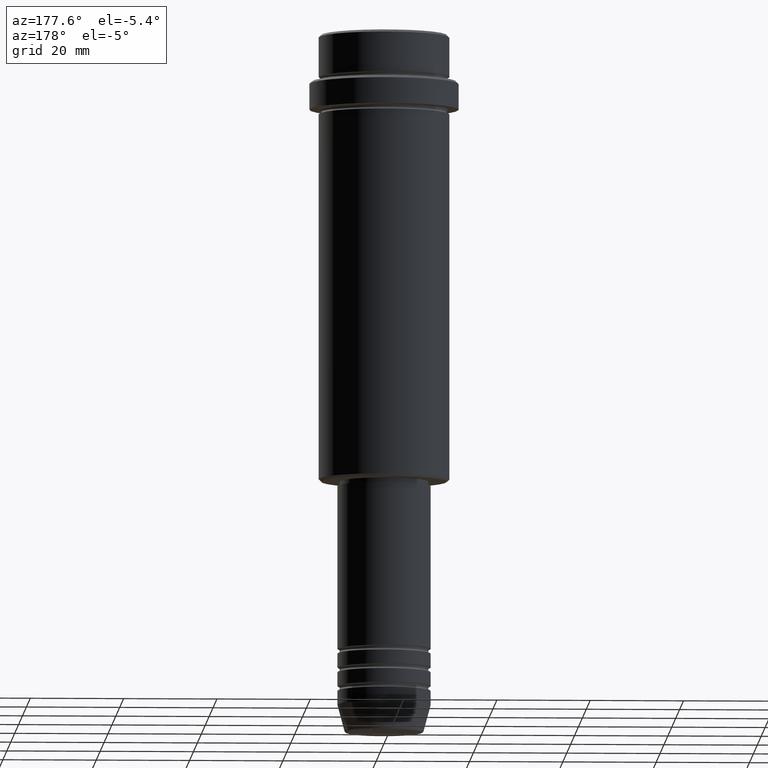
[diagram: clean part render]
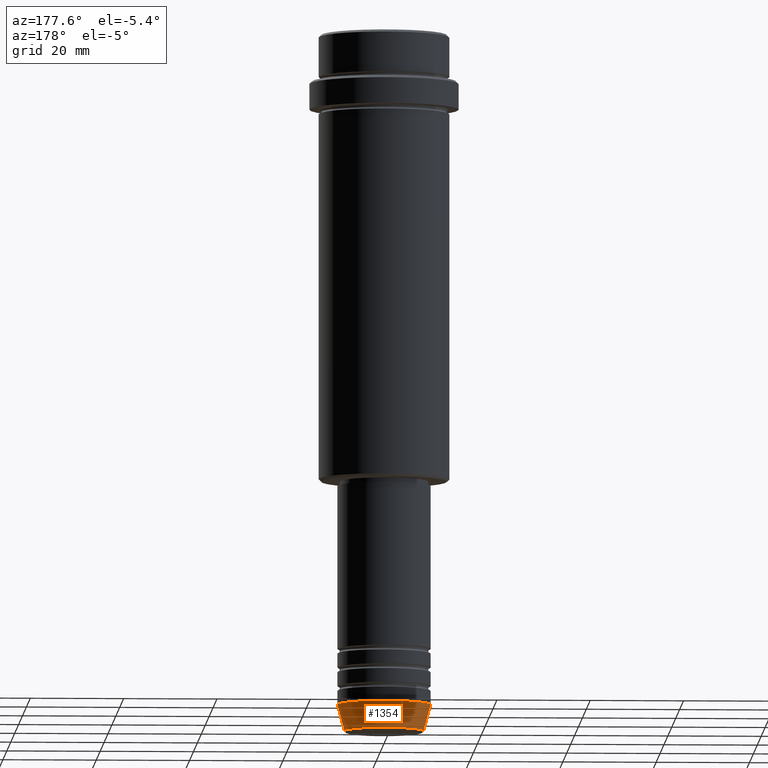
[diagram: same view with one face highlighted and labeled with its STEP entity id]
A machine part, auxiliary view. The second image highlights one B-rep face of the part: STEP entity #1354.
In plain terms, the highlighted conical surface has half-angle 15 deg.
Its self-contained STEP definition (entity closure, byte-faithful):
#48 = DIRECTION ( 'NONE',  ( -0.000000000000000000, -0.000000000000000000, 1.000000000000000000 ) ) ;
#54 = LINE ( 'NONE', #477, #246 ) ;
#84 = EDGE_CURVE ( 'NONE', #1360, #914, #1189, .T. ) ;
#93 = CARTESIAN_POINT ( 'NONE',  ( -10.00000000000000000, 1.224646799147353256E-15, -144.0000000000000284 ) ) ;
#133 = DIRECTION ( 'NONE',  ( -0.000000000000000000, -0.000000000000000000, 1.000000000000000000 ) ) ;
#205 = LINE ( 'NONE', #512, #846 ) ;
#230 = CARTESIAN_POINT ( 'NONE',  ( 8.491604264568309191, 0.000000000000000000, -149.6294095225512990 ) ) ;
#233 = CARTESIAN_POINT ( 'NONE',  ( 0.000000000000000000, 0.000000000000000000, -144.0000000000000284 ) ) ;
#246 = VECTOR ( 'NONE', #598, 1000.000000000000114 ) ;
#247 = AXIS2_PLACEMENT_3D ( 'NONE', #971, #660, #978 ) ;
#322 = VERTEX_POINT ( 'NONE', #1132 ) ;
#477 = CARTESIAN_POINT ( 'NONE',  ( 10.00000000000000000, 0.000000000000000000, -144.0000000000000284 ) ) ;
#482 = EDGE_CURVE ( 'NONE', #914, #632, #205, .T. ) ;
#512 = CARTESIAN_POINT ( 'NONE',  ( -10.00000000000000000, 1.224646799147353256E-15, -144.0000000000000284 ) ) ;
#528 = FACE_OUTER_BOUND ( 'NONE', #998, .T. ) ;
#559 = ORIENTED_EDGE ( 'NONE', *, *, #852, .F. ) ;
#598 = DIRECTION ( 'NONE',  ( 0.2588190451025211281, 0.000000000000000000, 0.9659258262890680902 ) ) ;
#603 = CARTESIAN_POINT ( 'NONE',  ( 0.000000000000000000, 0.000000000000000000, -149.6294095225512990 ) ) ;
#632 = VERTEX_POINT ( 'NONE', #93 ) ;
#660 = DIRECTION ( 'NONE',  ( -0.000000000000000000, -0.000000000000000000, 1.000000000000000000 ) ) ;
#686 = CIRCLE ( 'NONE', #1355, 10.00000000000000000 ) ;
#739 = EDGE_CURVE ( 'NONE', #322, #632, #686, .T. ) ;
#752 = ORIENTED_EDGE ( 'NONE', *, *, #84, .T. ) ;
#846 = VECTOR ( 'NONE', #1403, 1000.000000000000114 ) ;
#852 = EDGE_CURVE ( 'NONE', #1360, #322, #54, .T. ) ;
#914 = VERTEX_POINT ( 'NONE', #1096 ) ;
#971 = CARTESIAN_POINT ( 'NONE',  ( 0.000000000000000000, 0.000000000000000000, -144.0000000000000284 ) ) ;
#978 = DIRECTION ( 'NONE',  ( 1.000000000000000000, 0.000000000000000000, 0.000000000000000000 ) ) ;
#998 = EDGE_LOOP ( 'NONE', ( #752, #1040, #1417, #559 ) ) ;
#1040 = ORIENTED_EDGE ( 'NONE', *, *, #482, .T. ) ;
#1096 = CARTESIAN_POINT ( 'NONE',  ( -8.491604264568309191, 1.132284198685156387E-15, -149.6294095225512990 ) ) ;
#1132 = CARTESIAN_POINT ( 'NONE',  ( 10.00000000000000000, 0.000000000000000000, -144.0000000000000284 ) ) ;
#1189 = CIRCLE ( 'NONE', #1368, 8.491604264568309191 ) ;
#1226 = CONICAL_SURFACE ( 'NONE', #247, 10.00000000000000000, 0.2617993877991498519 ) ;
#1259 = DIRECTION ( 'NONE',  ( 1.000000000000000000, 0.000000000000000000, 0.000000000000000000 ) ) ;
#1354 = ADVANCED_FACE ( 'NONE', ( #528 ), #1226, .T. ) ;
#1355 = AXIS2_PLACEMENT_3D ( 'NONE', #233, #133, #1358 ) ;
#1358 = DIRECTION ( 'NONE',  ( 1.000000000000000000, 0.000000000000000000, 0.000000000000000000 ) ) ;
#1360 = VERTEX_POINT ( 'NONE', #230 ) ;
#1368 = AXIS2_PLACEMENT_3D ( 'NONE', #603, #48, #1259 ) ;
#1403 = DIRECTION ( 'NONE',  ( -0.2588190451025211281, 3.169619151431769872E-17, 0.9659258262890680902 ) ) ;
#1417 = ORIENTED_EDGE ( 'NONE', *, *, #739, .F. ) ;